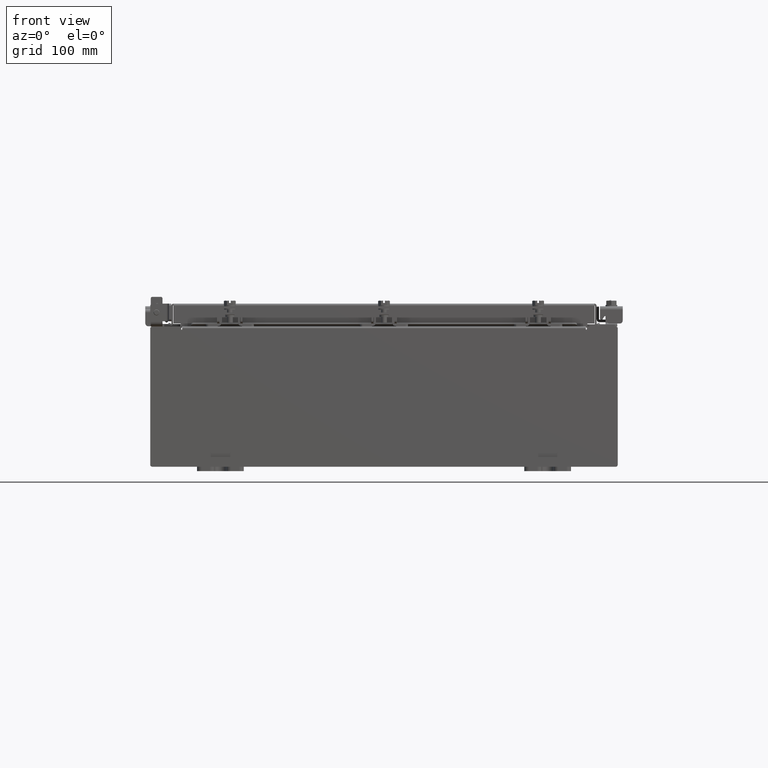
[diagram: clean part render]
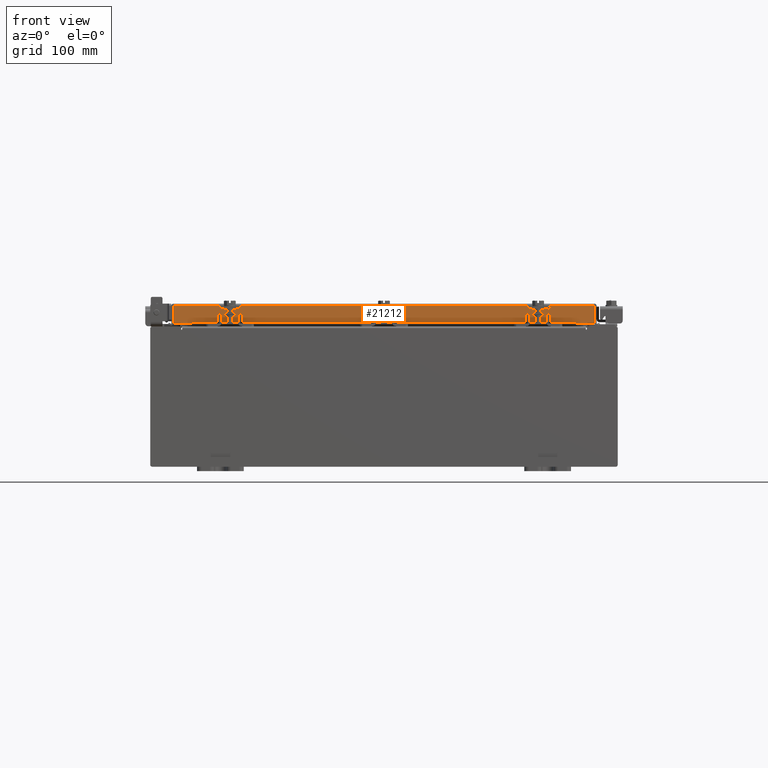
[diagram: same view with one face highlighted and labeled with its STEP entity id]
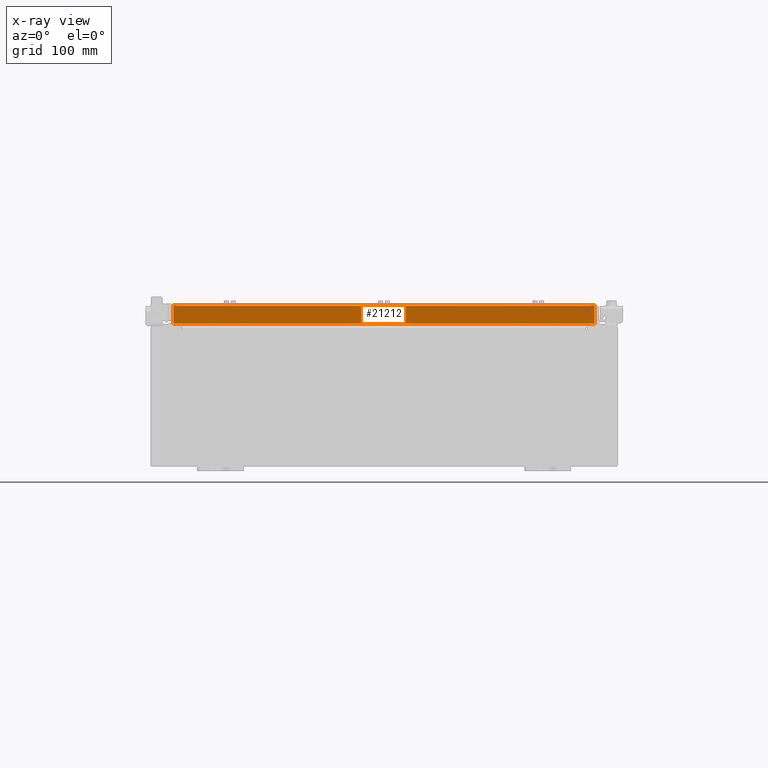
[diagram: x-ray of the same camera — body ghosted, the highlighted face saturated]
A machine part, front view. The second image highlights one B-rep face of the part: STEP entity #21212.
The next image is the same camera in x-ray: the body ghosted, the highlighted face saturated — about 0% of this face is hidden behind the body in this view.
In plain terms, the highlighted planar face has unit normal (-0, 1, -0).
Its self-contained STEP definition (entity closure, byte-faithful):
#43 = VECTOR ( 'NONE', #4713, 39.37007874015748100 ) ;
#188 = CARTESIAN_POINT ( 'NONE',  ( 8.255157864376267100, -9.094000000000001200, -0.8500000000000020900 ) ) ;
#196 = CARTESIAN_POINT ( 'NONE',  ( 0.0000000000000000000, -9.093999999999999400, 2.622574073917692700E-014 ) ) ;
#854 = DIRECTION ( 'NONE',  ( -1.000000000000000000, 4.379057701015054300E-047, 1.201604571657912400E-016 ) ) ;
#1207 = CARTESIAN_POINT ( 'NONE',  ( 8.255157864376267100, -9.094000000000001200, -0.8500000000000020900 ) ) ;
#1512 = CARTESIAN_POINT ( 'NONE',  ( -9.005157864376267100, -9.093999999999999400, -0.08770000000000026400 ) ) ;
#2128 = VERTEX_POINT ( 'NONE', #8419 ) ;
#2442 = ORIENTED_EDGE ( 'NONE', *, *, #22334, .F. ) ;
#2839 = VECTOR ( 'NONE', #854, 39.37007874015748100 ) ;
#2956 = CARTESIAN_POINT ( 'NONE',  ( 9.094000000000001200, -9.094000000000001200, -0.8499999999999999800 ) ) ;
#3318 = VECTOR ( 'NONE', #16078, 39.37007874015748100 ) ;
#3319 = LINE ( 'NONE', #5142, #8005 ) ;
#3685 = DIRECTION ( 'NONE',  ( -3.387180227794633400E-031, 1.000000000000000000, -2.818880942772360100E-015 ) ) ;
#4164 = FACE_OUTER_BOUND ( 'NONE', #11982, .T. ) ;
#4713 = DIRECTION ( 'NONE',  ( -1.000000000000000000, 4.379057701015054300E-047, 1.201604571657912400E-016 ) ) ;
#5142 = CARTESIAN_POINT ( 'NONE',  ( -9.005157864376267100, -9.093999999999999400, 2.622574073917692700E-014 ) ) ;
#5741 = CARTESIAN_POINT ( 'NONE',  ( -9.005157864376267100, -9.094000000000001200, -0.8499999999999977600 ) ) ;
#5788 = CARTESIAN_POINT ( 'NONE',  ( 9.005157864376268900, -9.094000000000001200, -0.8499999999999999800 ) ) ;
#6479 = VERTEX_POINT ( 'NONE', #5788 ) ;
#7184 = EDGE_CURVE ( 'NONE', #14145, #21306, #3319, .T. ) ;
#7519 = LINE ( 'NONE', #13064, #2839 ) ;
#8005 = VECTOR ( 'NONE', #13814, 39.37007874015748100 ) ;
#8419 = CARTESIAN_POINT ( 'NONE',  ( -8.255157864376267100, -9.094000000000001200, -0.8500000000000020900 ) ) ;
#9171 = CARTESIAN_POINT ( 'NONE',  ( 9.094000000000001200, -9.093999999999999400, -0.08770000000000026400 ) ) ;
#10406 = LINE ( 'NONE', #1207, #18591 ) ;
#10620 = PLANE ( 'NONE',  #14824 ) ;
#11345 = LINE ( 'NONE', #18038, #20617 ) ;
#11664 = DIRECTION ( 'NONE',  ( -1.000000000000000000, 0.0000000000000000000, 0.0000000000000000000 ) ) ;
#11982 = EDGE_LOOP ( 'NONE', ( #12322, #15442, #12496, #2442, #21189, #19108 ) ) ;
#12322 = ORIENTED_EDGE ( 'NONE', *, *, #13846, .F. ) ;
#12496 = ORIENTED_EDGE ( 'NONE', *, *, #19981, .F. ) ;
#13064 = CARTESIAN_POINT ( 'NONE',  ( 9.094000000000001200, -9.094000000000001200, -0.8499999999999999800 ) ) ;
#13814 = DIRECTION ( 'NONE',  ( 0.0000000000000000000, -2.818880942772360100E-015, -1.000000000000000000 ) ) ;
#13846 = EDGE_CURVE ( 'NONE', #14145, #17673, #21856, .T. ) ;
#13917 = CARTESIAN_POINT ( 'NONE',  ( 9.005157864376270600, -9.093999999999999400, -0.08770000000000026400 ) ) ;
#13936 = LINE ( 'NONE', #2956, #43 ) ;
#14145 = VERTEX_POINT ( 'NONE', #1512 ) ;
#14455 = DIRECTION ( 'NONE',  ( -0.0000000000000000000, -2.818880942772360100E-015, -1.000000000000000000 ) ) ;
#14824 = AXIS2_PLACEMENT_3D ( 'NONE', #196, #3685, #15884 ) ;
#15442 = ORIENTED_EDGE ( 'NONE', *, *, #7184, .T. ) ;
#15884 = DIRECTION ( 'NONE',  ( 0.0000000000000000000, 2.818880942772360100E-015, 1.000000000000000000 ) ) ;
#16078 = DIRECTION ( 'NONE',  ( 1.000000000000000000, 3.387180227794633400E-031, -9.232666117091638000E-046 ) ) ;
#17673 = VERTEX_POINT ( 'NONE', #13917 ) ;
#18038 = CARTESIAN_POINT ( 'NONE',  ( 9.005157864376268900, -9.093999999999999400, -0.07470000000000015500 ) ) ;
#18591 = VECTOR ( 'NONE', #11664, 39.37007874015748100 ) ;
#19108 = ORIENTED_EDGE ( 'NONE', *, *, #19265, .F. ) ;
#19265 = EDGE_CURVE ( 'NONE', #17673, #6479, #11345, .T. ) ;
#19981 = EDGE_CURVE ( 'NONE', #2128, #21306, #7519, .T. ) ;
#20305 = VERTEX_POINT ( 'NONE', #188 ) ;
#20617 = VECTOR ( 'NONE', #14455, 39.37007874015748100 ) ;
#21189 = ORIENTED_EDGE ( 'NONE', *, *, #22337, .F. ) ;
#21212 = ADVANCED_FACE ( 'NONE', ( #4164 ), #10620, .F. ) ;
#21306 = VERTEX_POINT ( 'NONE', #5741 ) ;
#21856 = LINE ( 'NONE', #9171, #3318 ) ;
#22334 = EDGE_CURVE ( 'NONE', #20305, #2128, #10406, .T. ) ;
#22337 = EDGE_CURVE ( 'NONE', #6479, #20305, #13936, .T. ) ;